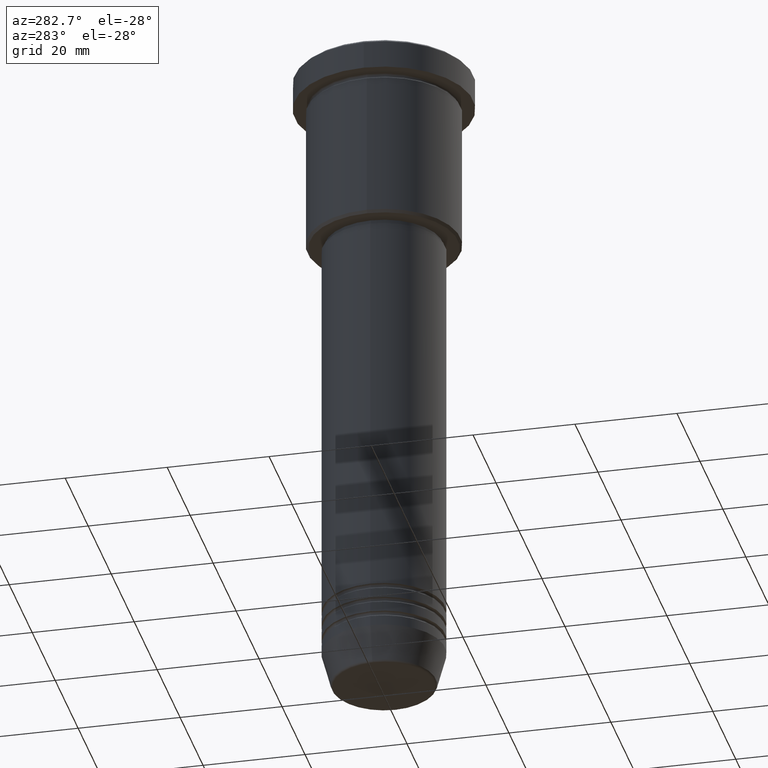
[diagram: clean part render]
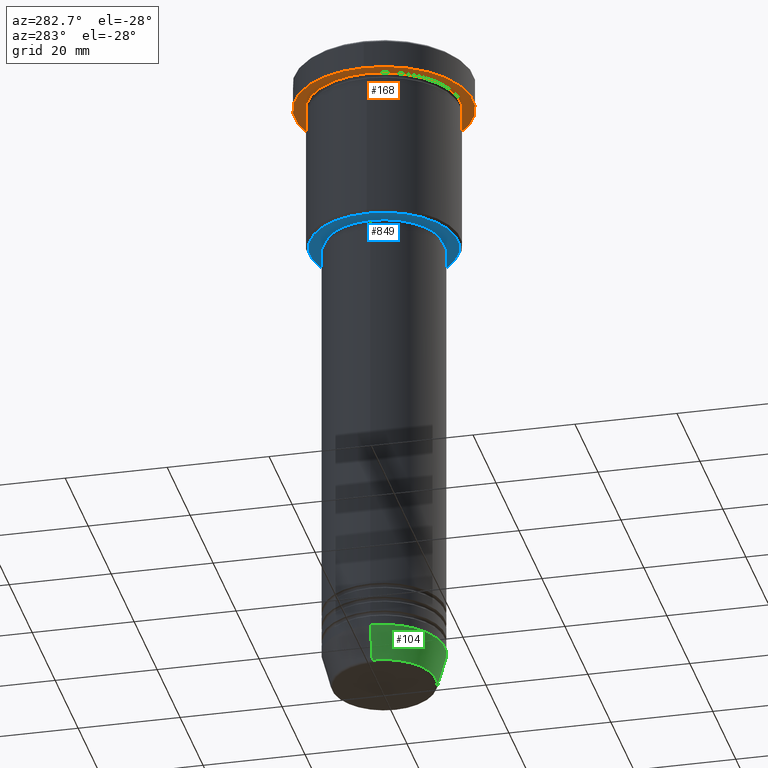
[diagram: same view with three faces highlighted in distinct colors, each labeled with its STEP entity id]
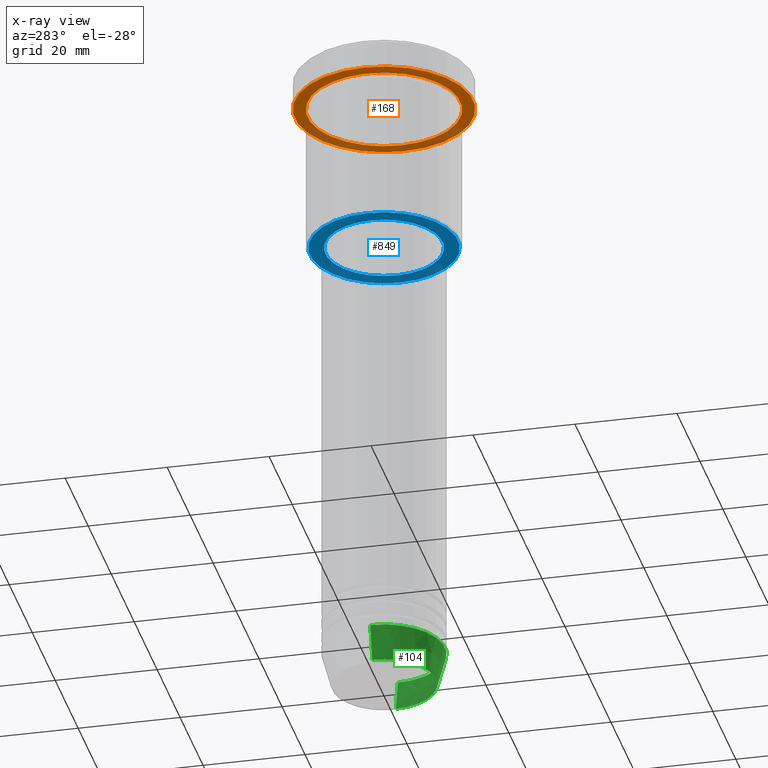
[diagram: x-ray of the same camera — body ghosted, the three highlighted faces saturated]
A machine part, auxiliary view with three faces highlighted in distinct colors.
The next image is the same camera in x-ray (body ghosted, the three faces saturated) — at least one of them is partly hidden behind the body in this view.
Their STEP definitions:

[orange] entity #168 — the highlighted planar face has unit normal (0, 0, -1).
#5 = DIRECTION ( 'NONE',  ( -0.000000000000000000, -0.000000000000000000, 1.000000000000000000 ) ) ;
#60 = DIRECTION ( 'NONE',  ( -1.000000000000000000, 0.000000000000000000, -0.000000000000000000 ) ) ;
#86 = VERTEX_POINT ( 'NONE', #108 ) ;
#108 = CARTESIAN_POINT ( 'NONE',  ( -17.50000000000000000, 2.143131898507868248E-15, -5.999999999999995559 ) ) ;
#112 = EDGE_CURVE ( 'NONE', #403, #647, #278, .T. ) ;
#116 = DIRECTION ( 'NONE',  ( -0.000000000000000000, -0.000000000000000000, 1.000000000000000000 ) ) ;
#145 = CARTESIAN_POINT ( 'NONE',  ( 0.000000000000000000, 0.000000000000000000, -5.999999999999995559 ) ) ;
#156 = CARTESIAN_POINT ( 'NONE',  ( 15.00000000000000000, 1.836970198721029589E-15, -5.999999999999994671 ) ) ;
#160 = CARTESIAN_POINT ( 'NONE',  ( -15.00000000000000000, 0.000000000000000000, -5.999999999999994671 ) ) ;
#168 = ADVANCED_FACE ( 'NONE', ( #868, #1133 ), #319, .T. ) ;
#179 = CARTESIAN_POINT ( 'NONE',  ( 0.000000000000000000, 0.000000000000000000, -5.999999999999995559 ) ) ;
#195 = DIRECTION ( 'NONE',  ( -1.000000000000000000, 0.000000000000000000, 0.000000000000000000 ) ) ;
#203 = DIRECTION ( 'NONE',  ( 1.000000000000000000, 0.000000000000000000, 0.000000000000000000 ) ) ;
#232 = CARTESIAN_POINT ( 'NONE',  ( 0.000000000000000000, 17.50000000000000000, -5.999999999999995559 ) ) ;
#278 = CIRCLE ( 'NONE', #875, 15.00000000000000000 ) ;
#319 = PLANE ( 'NONE',  #839 ) ;
#345 = EDGE_LOOP ( 'NONE', ( #748, #1002 ) ) ;
#384 = EDGE_LOOP ( 'NONE', ( #951, #1080 ) ) ;
#395 = DIRECTION ( 'NONE',  ( -0.000000000000000000, -0.000000000000000000, 1.000000000000000000 ) ) ;
#403 = VERTEX_POINT ( 'NONE', #156 ) ;
#405 = CIRCLE ( 'NONE', #661, 15.00000000000000000 ) ;
#408 = DIRECTION ( 'NONE',  ( 0.000000000000000000, 0.000000000000000000, -1.000000000000000000 ) ) ;
#513 = CARTESIAN_POINT ( 'NONE',  ( 17.50000000000000000, 0.000000000000000000, -5.999999999999995559 ) ) ;
#597 = DIRECTION ( 'NONE',  ( 1.000000000000000000, 0.000000000000000000, 0.000000000000000000 ) ) ;
#647 = VERTEX_POINT ( 'NONE', #160 ) ;
#651 = EDGE_CURVE ( 'NONE', #1170, #86, #964, .T. ) ;
#661 = AXIS2_PLACEMENT_3D ( 'NONE', #179, #5, #906 ) ;
#696 = AXIS2_PLACEMENT_3D ( 'NONE', #145, #867, #597 ) ;
#702 = CIRCLE ( 'NONE', #968, 17.50000000000000000 ) ;
#748 = ORIENTED_EDGE ( 'NONE', *, *, #763, .T. ) ;
#763 = EDGE_CURVE ( 'NONE', #647, #403, #405, .T. ) ;
#839 = AXIS2_PLACEMENT_3D ( 'NONE', #232, #408, #60 ) ;
#867 = DIRECTION ( 'NONE',  ( -0.000000000000000000, -0.000000000000000000, 1.000000000000000000 ) ) ;
#868 = FACE_BOUND ( 'NONE', #345, .T. ) ;
#875 = AXIS2_PLACEMENT_3D ( 'NONE', #1012, #116, #195 ) ;
#906 = DIRECTION ( 'NONE',  ( -1.000000000000000000, 0.000000000000000000, 0.000000000000000000 ) ) ;
#941 = CARTESIAN_POINT ( 'NONE',  ( 0.000000000000000000, 0.000000000000000000, -5.999999999999995559 ) ) ;
#951 = ORIENTED_EDGE ( 'NONE', *, *, #651, .F. ) ;
#957 = EDGE_CURVE ( 'NONE', #86, #1170, #702, .T. ) ;
#964 = CIRCLE ( 'NONE', #696, 17.50000000000000000 ) ;
#968 = AXIS2_PLACEMENT_3D ( 'NONE', #941, #395, #203 ) ;
#1002 = ORIENTED_EDGE ( 'NONE', *, *, #112, .T. ) ;
#1012 = CARTESIAN_POINT ( 'NONE',  ( 0.000000000000000000, 0.000000000000000000, -5.999999999999995559 ) ) ;
#1080 = ORIENTED_EDGE ( 'NONE', *, *, #957, .F. ) ;
#1133 = FACE_OUTER_BOUND ( 'NONE', #384, .T. ) ;
#1170 = VERTEX_POINT ( 'NONE', #513 ) ;

[blue] entity #849 — the highlighted planar face has unit normal (0, 0, -1).
#24 = EDGE_CURVE ( 'NONE', #890, #927, #1109, .T. ) ;
#76 = FACE_OUTER_BOUND ( 'NONE', #905, .T. ) ;
#159 = ORIENTED_EDGE ( 'NONE', *, *, #24, .T. ) ;
#187 = DIRECTION ( 'NONE',  ( 1.000000000000000000, 0.000000000000000000, 0.000000000000000000 ) ) ;
#198 = CIRCLE ( 'NONE', #1010, 14.49999999999996980 ) ;
#212 = AXIS2_PLACEMENT_3D ( 'NONE', #638, #733, #187 ) ;
#298 = VERTEX_POINT ( 'NONE', #949 ) ;
#317 = DIRECTION ( 'NONE',  ( -1.000000000000000000, 0.000000000000000000, 0.000000000000000000 ) ) ;
#360 = ORIENTED_EDGE ( 'NONE', *, *, #1076, .T. ) ;
#374 = DIRECTION ( 'NONE',  ( 0.000000000000000000, 0.000000000000000000, -1.000000000000000000 ) ) ;
#425 = DIRECTION ( 'NONE',  ( 0.000000000000000000, 0.000000000000000000, -1.000000000000000000 ) ) ;
#431 = EDGE_LOOP ( 'NONE', ( #507, #159 ) ) ;
#438 = CARTESIAN_POINT ( 'NONE',  ( 0.000000000000000000, 15.00000000000000000, -35.99999999999999289 ) ) ;
#447 = FACE_BOUND ( 'NONE', #431, .T. ) ;
#457 = DIRECTION ( 'NONE',  ( -1.000000000000000000, 0.000000000000000000, -0.000000000000000000 ) ) ;
#460 = DIRECTION ( 'NONE',  ( 1.000000000000000000, 0.000000000000000000, 0.000000000000000000 ) ) ;
#507 = ORIENTED_EDGE ( 'NONE', *, *, #771, .T. ) ;
#515 = AXIS2_PLACEMENT_3D ( 'NONE', #438, #374, #457 ) ;
#553 = CIRCLE ( 'NONE', #212, 11.50000000000000000 ) ;
#625 = PLANE ( 'NONE',  #515 ) ;
#638 = CARTESIAN_POINT ( 'NONE',  ( 0.000000000000000000, 0.000000000000000000, -35.99999999999999289 ) ) ;
#675 = DIRECTION ( 'NONE',  ( -1.000000000000000000, 0.000000000000000000, 0.000000000000000000 ) ) ;
#733 = DIRECTION ( 'NONE',  ( -0.000000000000000000, -0.000000000000000000, 1.000000000000000000 ) ) ;
#745 = AXIS2_PLACEMENT_3D ( 'NONE', #1022, #1115, #460 ) ;
#752 = CARTESIAN_POINT ( 'NONE',  ( -11.50000000000000000, 1.408343819019456176E-15, -35.99999999999999289 ) ) ;
#771 = EDGE_CURVE ( 'NONE', #927, #890, #553, .T. ) ;
#849 = ADVANCED_FACE ( 'NONE', ( #76, #447 ), #625, .T. ) ;
#861 = CARTESIAN_POINT ( 'NONE',  ( 0.000000000000000000, 0.000000000000000000, -35.99999999999999289 ) ) ;
#890 = VERTEX_POINT ( 'NONE', #752 ) ;
#905 = EDGE_LOOP ( 'NONE', ( #981, #360 ) ) ;
#923 = CARTESIAN_POINT ( 'NONE',  ( 0.000000000000000000, 0.000000000000000000, -35.99999999999999289 ) ) ;
#927 = VERTEX_POINT ( 'NONE', #934 ) ;
#930 = AXIS2_PLACEMENT_3D ( 'NONE', #861, #425, #675 ) ;
#934 = CARTESIAN_POINT ( 'NONE',  ( 11.50000000000000000, 0.000000000000000000, -35.99999999999999289 ) ) ;
#949 = CARTESIAN_POINT ( 'NONE',  ( -14.49999999999996980, 1.806354028742344224E-15, -35.99999999999999289 ) ) ;
#952 = CARTESIAN_POINT ( 'NONE',  ( 14.49999999999996980, 0.000000000000000000, -35.99999999999999289 ) ) ;
#981 = ORIENTED_EDGE ( 'NONE', *, *, #1009, .T. ) ;
#1009 = EDGE_CURVE ( 'NONE', #1094, #298, #198, .T. ) ;
#1010 = AXIS2_PLACEMENT_3D ( 'NONE', #923, #1130, #317 ) ;
#1022 = CARTESIAN_POINT ( 'NONE',  ( 0.000000000000000000, 0.000000000000000000, -35.99999999999999289 ) ) ;
#1076 = EDGE_CURVE ( 'NONE', #298, #1094, #1145, .T. ) ;
#1094 = VERTEX_POINT ( 'NONE', #952 ) ;
#1109 = CIRCLE ( 'NONE', #745, 11.50000000000000000 ) ;
#1115 = DIRECTION ( 'NONE',  ( -0.000000000000000000, -0.000000000000000000, 1.000000000000000000 ) ) ;
#1130 = DIRECTION ( 'NONE',  ( 0.000000000000000000, 0.000000000000000000, -1.000000000000000000 ) ) ;
#1145 = CIRCLE ( 'NONE', #930, 14.49999999999996980 ) ;

[green] entity #104 — the highlighted conical surface has half-angle 15 deg.
#10 = AXIS2_PLACEMENT_3D ( 'NONE', #731, #560, #1104 ) ;
#69 = ORIENTED_EDGE ( 'NONE', *, *, #1178, .T. ) ;
#104 = ADVANCED_FACE ( 'NONE', ( #378 ), #180, .T. ) ;
#171 = VERTEX_POINT ( 'NONE', #580 ) ;
#180 = CONICAL_SURFACE ( 'NONE', #10, 12.00000000000000000, 0.2617993877991500740 ) ;
#185 = EDGE_CURVE ( 'NONE', #967, #958, #540, .T. ) ;
#186 = ORIENTED_EDGE ( 'NONE', *, *, #1082, .T. ) ;
#188 = CARTESIAN_POINT ( 'NONE',  ( -12.00000000000000000, 1.469576158976823947E-15, -124.0000000000000000 ) ) ;
#214 = AXIS2_PLACEMENT_3D ( 'NONE', #223, #582, #600 ) ;
#223 = CARTESIAN_POINT ( 'NONE',  ( 0.000000000000000000, 0.000000000000000000, -130.6294095225512422 ) ) ;
#253 = VERTEX_POINT ( 'NONE', #939 ) ;
#260 = ORIENTED_EDGE ( 'NONE', *, *, #185, .F. ) ;
#275 = VECTOR ( 'NONE', #848, 1000.000000000000000 ) ;
#294 = VECTOR ( 'NONE', #1043, 1000.000000000000000 ) ;
#304 = CARTESIAN_POINT ( 'NONE',  ( 12.00000000000000000, 0.000000000000000000, -124.0000000000000000 ) ) ;
#378 = FACE_OUTER_BOUND ( 'NONE', #1007, .T. ) ;
#540 = CIRCLE ( 'NONE', #1172, 12.00000000000000000 ) ;
#557 = CARTESIAN_POINT ( 'NONE',  ( -12.00000000000000000, 1.469576158976823947E-15, -124.0000000000000000 ) ) ;
#560 = DIRECTION ( 'NONE',  ( -0.000000000000000000, -0.000000000000000000, 1.000000000000000000 ) ) ;
#564 = EDGE_CURVE ( 'NONE', #253, #967, #825, .T. ) ;
#580 = CARTESIAN_POINT ( 'NONE',  ( 10.22365507213718949, 0.000000000000000000, -130.6294095225512422 ) ) ;
#582 = DIRECTION ( 'NONE',  ( -0.000000000000000000, -0.000000000000000000, 1.000000000000000000 ) ) ;
#596 = LINE ( 'NONE', #1157, #294 ) ;
#600 = DIRECTION ( 'NONE',  ( 1.000000000000000000, 0.000000000000000000, 0.000000000000000000 ) ) ;
#731 = CARTESIAN_POINT ( 'NONE',  ( 0.000000000000000000, 0.000000000000000000, -124.0000000000000000 ) ) ;
#762 = DIRECTION ( 'NONE',  ( -0.000000000000000000, -0.000000000000000000, 1.000000000000000000 ) ) ;
#825 = LINE ( 'NONE', #188, #275 ) ;
#836 = CIRCLE ( 'NONE', #214, 10.22365507213718949 ) ;
#848 = DIRECTION ( 'NONE',  ( -0.2588190451025213501, 3.169619151431772337E-17, 0.9659258262890680902 ) ) ;
#850 = CARTESIAN_POINT ( 'NONE',  ( 0.000000000000000000, 0.000000000000000000, -124.0000000000000000 ) ) ;
#858 = DIRECTION ( 'NONE',  ( 1.000000000000000000, 0.000000000000000000, 0.000000000000000000 ) ) ;
#939 = CARTESIAN_POINT ( 'NONE',  ( -10.22365507213718949, 1.360806402472382744E-15, -130.6294095225512422 ) ) ;
#958 = VERTEX_POINT ( 'NONE', #304 ) ;
#967 = VERTEX_POINT ( 'NONE', #557 ) ;
#1007 = EDGE_LOOP ( 'NONE', ( #1067, #69, #186, #260 ) ) ;
#1043 = DIRECTION ( 'NONE',  ( 0.2588190451025213501, 0.000000000000000000, 0.9659258262890680902 ) ) ;
#1067 = ORIENTED_EDGE ( 'NONE', *, *, #564, .F. ) ;
#1082 = EDGE_CURVE ( 'NONE', #171, #958, #596, .T. ) ;
#1104 = DIRECTION ( 'NONE',  ( 1.000000000000000000, 0.000000000000000000, 0.000000000000000000 ) ) ;
#1157 = CARTESIAN_POINT ( 'NONE',  ( 12.00000000000000000, 0.000000000000000000, -124.0000000000000000 ) ) ;
#1172 = AXIS2_PLACEMENT_3D ( 'NONE', #850, #762, #858 ) ;
#1178 = EDGE_CURVE ( 'NONE', #253, #171, #836, .T. ) ;